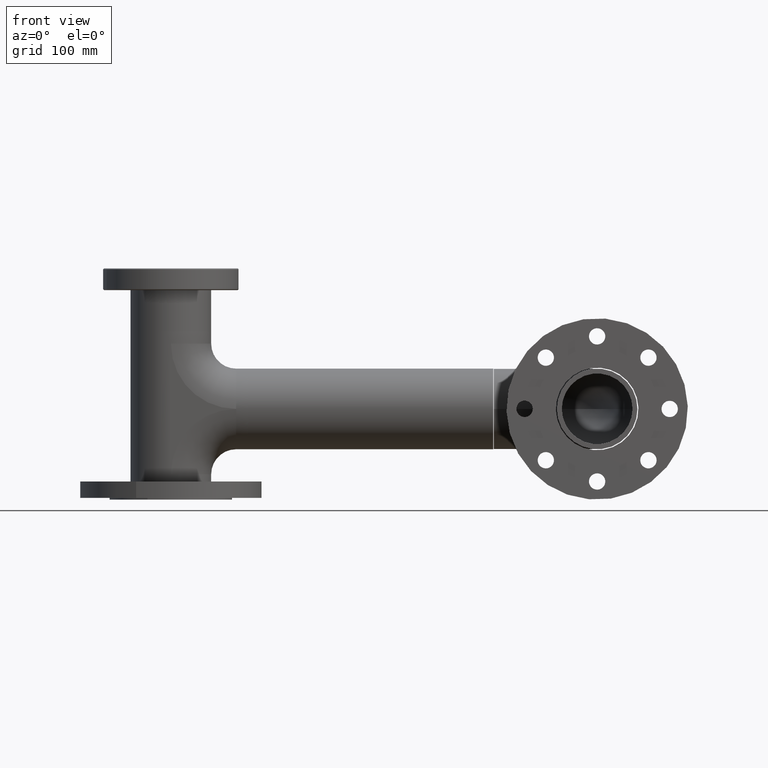
[diagram: clean part render]
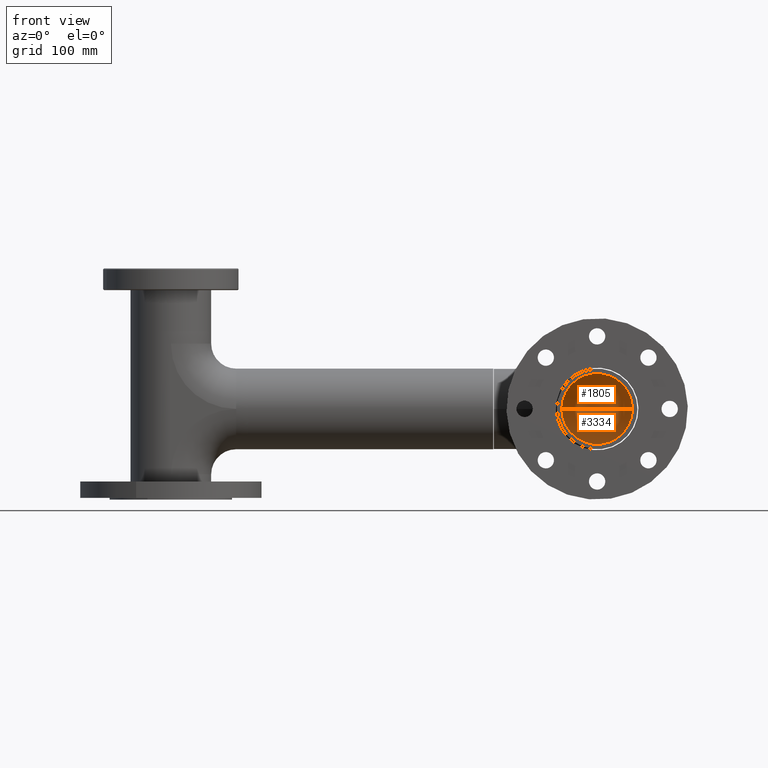
[diagram: same view with one multi-face feature highlighted, each face labeled with its STEP entity id]
A machine part, front view. The highlighted faces form ONE feature: a constant-radius fillet chain: 2 tangent blend faces with common blend radius 38.96 mm. The faces share edges in the B-rep.
Their STEP definitions:
[1] entity #1805 (Torus):
#20 = ORIENTED_EDGE ( 'NONE', *, *, #392, .T. ) ;
#48 = TOROIDAL_SURFACE ( 'NONE', #2749, 114.0000000000000000, 38.96000000000000796 ) ;
#85 = CIRCLE ( 'NONE', #2624, 38.96000000000000796 ) ;
#198 = CARTESIAN_POINT ( 'NONE',  ( 0.000000000000000000, 0.000000000000000000, 0.000000000000000000 ) ) ;
#221 = CIRCLE ( 'NONE', #3208, 38.96000000000000796 ) ;
#226 = EDGE_CURVE ( 'NONE', #1880, #3271, #85, .T. ) ;
#274 = AXIS2_PLACEMENT_3D ( 'NONE', #1383, #3254, #360 ) ;
#293 = VERTEX_POINT ( 'NONE', #2690 ) ;
#302 = AXIS2_PLACEMENT_3D ( 'NONE', #3232, #858, #1906 ) ;
#360 = DIRECTION ( 'NONE',  ( 1.000000000000000000, 0.000000000000000000, 0.000000000000000000 ) ) ;
#392 = EDGE_CURVE ( 'NONE', #1880, #293, #3287, .T. ) ;
#680 = DIRECTION ( 'NONE',  ( -3.169856808907806676E-15, -1.000000000000000000, -0.000000000000000000 ) ) ;
#716 = CARTESIAN_POINT ( 'NONE',  ( 0.000000000000000000, 75.03999999999999204, -4.771223929478089166E-15 ) ) ;
#858 = DIRECTION ( 'NONE',  ( 0.000000000000000000, 0.000000000000000000, 1.000000000000000000 ) ) ;
#955 = DIRECTION ( 'NONE',  ( -1.000000000000000000, -0.000000000000000000, -0.000000000000000000 ) ) ;
#1179 = DIRECTION ( 'NONE',  ( 0.000000000000000000, 0.000000000000000000, -1.000000000000000000 ) ) ;
#1248 = DIRECTION ( 'NONE',  ( 0.000000000000000000, 0.000000000000000000, 1.000000000000000000 ) ) ;
#1346 = CARTESIAN_POINT ( 'NONE',  ( -75.03999999999999204, 2.378660549404417942E-13, -4.771223929478089166E-15 ) ) ;
#1383 = CARTESIAN_POINT ( 'NONE',  ( 0.000000000000000000, 0.000000000000000000, -4.771223929478089166E-15 ) ) ;
#1393 = VERTEX_POINT ( 'NONE', #1346 ) ;
#1504 = CARTESIAN_POINT ( 'NONE',  ( -114.0000000000000000, 3.613636762154899974E-13, 0.000000000000000000 ) ) ;
#1514 = FACE_OUTER_BOUND ( 'NONE', #2767, .T. ) ;
#1774 = CARTESIAN_POINT ( 'NONE',  ( 0.000000000000000000, 152.9600000000000080, 0.000000000000000000 ) ) ;
#1805 = ADVANCED_FACE ( 'NONE', ( #1514 ), #48, .F. ) ;
#1880 = VERTEX_POINT ( 'NONE', #1774 ) ;
#1906 = DIRECTION ( 'NONE',  ( 1.000000000000000000, 0.000000000000000000, 0.000000000000000000 ) ) ;
#2182 = EDGE_CURVE ( 'NONE', #3271, #1393, #2260, .T. ) ;
#2232 = CARTESIAN_POINT ( 'NONE',  ( 0.000000000000000000, 114.0000000000000000, 0.000000000000000000 ) ) ;
#2260 = CIRCLE ( 'NONE', #274, 75.03999999999999204 ) ;
#2368 = ORIENTED_EDGE ( 'NONE', *, *, #226, .F. ) ;
#2624 = AXIS2_PLACEMENT_3D ( 'NONE', #2232, #955, #3345 ) ;
#2690 = CARTESIAN_POINT ( 'NONE',  ( -152.9600000000000080, 4.848612974905381501E-13, 0.000000000000000000 ) ) ;
#2749 = AXIS2_PLACEMENT_3D ( 'NONE', #198, #1248, #2874 ) ;
#2767 = EDGE_LOOP ( 'NONE', ( #2368, #20, #3000, #3365 ) ) ;
#2779 = EDGE_CURVE ( 'NONE', #293, #1393, #221, .T. ) ;
#2874 = DIRECTION ( 'NONE',  ( 1.000000000000000000, 0.000000000000000000, 0.000000000000000000 ) ) ;
#3000 = ORIENTED_EDGE ( 'NONE', *, *, #2779, .T. ) ;
#3208 = AXIS2_PLACEMENT_3D ( 'NONE', #1504, #680, #1179 ) ;
#3232 = CARTESIAN_POINT ( 'NONE',  ( 0.000000000000000000, 0.000000000000000000, 0.000000000000000000 ) ) ;
#3254 = DIRECTION ( 'NONE',  ( 0.000000000000000000, 0.000000000000000000, 1.000000000000000000 ) ) ;
#3271 = VERTEX_POINT ( 'NONE', #716 ) ;
#3287 = CIRCLE ( 'NONE', #302, 152.9600000000000080 ) ;
#3345 = DIRECTION ( 'NONE',  ( 0.000000000000000000, 0.000000000000000000, -1.000000000000000000 ) ) ;
#3365 = ORIENTED_EDGE ( 'NONE', *, *, #2182, .F. ) ;
[2] entity #3334 (Torus):
#26 = FACE_OUTER_BOUND ( 'NONE', #799, .T. ) ;
#39 = EDGE_CURVE ( 'NONE', #1393, #293, #2296, .T. ) ;
#274 = AXIS2_PLACEMENT_3D ( 'NONE', #1383, #3254, #360 ) ;
#293 = VERTEX_POINT ( 'NONE', #2690 ) ;
#302 = AXIS2_PLACEMENT_3D ( 'NONE', #3232, #858, #1906 ) ;
#360 = DIRECTION ( 'NONE',  ( 1.000000000000000000, 0.000000000000000000, 0.000000000000000000 ) ) ;
#392 = EDGE_CURVE ( 'NONE', #1880, #293, #3287, .T. ) ;
#491 = ORIENTED_EDGE ( 'NONE', *, *, #392, .F. ) ;
#716 = CARTESIAN_POINT ( 'NONE',  ( 0.000000000000000000, 75.03999999999999204, -4.771223929478089166E-15 ) ) ;
#799 = EDGE_LOOP ( 'NONE', ( #491, #1613, #2615, #2906 ) ) ;
#801 = AXIS2_PLACEMENT_3D ( 'NONE', #2406, #2713, #3260 ) ;
#858 = DIRECTION ( 'NONE',  ( 0.000000000000000000, 0.000000000000000000, 1.000000000000000000 ) ) ;
#939 = TOROIDAL_SURFACE ( 'NONE', #2872, 114.0000000000000000, 38.96000000000000796 ) ;
#1011 = EDGE_CURVE ( 'NONE', #3271, #1880, #3408, .T. ) ;
#1346 = CARTESIAN_POINT ( 'NONE',  ( -75.03999999999999204, 2.378660549404417942E-13, -4.771223929478089166E-15 ) ) ;
#1383 = CARTESIAN_POINT ( 'NONE',  ( 0.000000000000000000, 0.000000000000000000, -4.771223929478089166E-15 ) ) ;
#1393 = VERTEX_POINT ( 'NONE', #1346 ) ;
#1613 = ORIENTED_EDGE ( 'NONE', *, *, #1011, .F. ) ;
#1774 = CARTESIAN_POINT ( 'NONE',  ( 0.000000000000000000, 152.9600000000000080, 0.000000000000000000 ) ) ;
#1880 = VERTEX_POINT ( 'NONE', #1774 ) ;
#1906 = DIRECTION ( 'NONE',  ( 1.000000000000000000, 0.000000000000000000, 0.000000000000000000 ) ) ;
#2098 = CARTESIAN_POINT ( 'NONE',  ( 0.000000000000000000, 0.000000000000000000, 0.000000000000000000 ) ) ;
#2182 = EDGE_CURVE ( 'NONE', #3271, #1393, #2260, .T. ) ;
#2260 = CIRCLE ( 'NONE', #274, 75.03999999999999204 ) ;
#2296 = CIRCLE ( 'NONE', #801, 38.96000000000000796 ) ;
#2406 = CARTESIAN_POINT ( 'NONE',  ( -114.0000000000000000, 3.613636762154899974E-13, 0.000000000000000000 ) ) ;
#2615 = ORIENTED_EDGE ( 'NONE', *, *, #2182, .T. ) ;
#2683 = AXIS2_PLACEMENT_3D ( 'NONE', #2808, #2772, #3036 ) ;
#2690 = CARTESIAN_POINT ( 'NONE',  ( -152.9600000000000080, 4.848612974905381501E-13, 0.000000000000000000 ) ) ;
#2713 = DIRECTION ( 'NONE',  ( -3.169856808907806676E-15, -1.000000000000000000, -0.000000000000000000 ) ) ;
#2772 = DIRECTION ( 'NONE',  ( -1.000000000000000000, -0.000000000000000000, -0.000000000000000000 ) ) ;
#2808 = CARTESIAN_POINT ( 'NONE',  ( 0.000000000000000000, 114.0000000000000000, 0.000000000000000000 ) ) ;
#2872 = AXIS2_PLACEMENT_3D ( 'NONE', #2098, #2931, #3226 ) ;
#2906 = ORIENTED_EDGE ( 'NONE', *, *, #39, .T. ) ;
#2931 = DIRECTION ( 'NONE',  ( 0.000000000000000000, 0.000000000000000000, 1.000000000000000000 ) ) ;
#3036 = DIRECTION ( 'NONE',  ( 0.000000000000000000, 0.000000000000000000, -1.000000000000000000 ) ) ;
#3226 = DIRECTION ( 'NONE',  ( 1.000000000000000000, 0.000000000000000000, 0.000000000000000000 ) ) ;
#3232 = CARTESIAN_POINT ( 'NONE',  ( 0.000000000000000000, 0.000000000000000000, 0.000000000000000000 ) ) ;
#3254 = DIRECTION ( 'NONE',  ( 0.000000000000000000, 0.000000000000000000, 1.000000000000000000 ) ) ;
#3260 = DIRECTION ( 'NONE',  ( 0.000000000000000000, 0.000000000000000000, -1.000000000000000000 ) ) ;
#3271 = VERTEX_POINT ( 'NONE', #716 ) ;
#3287 = CIRCLE ( 'NONE', #302, 152.9600000000000080 ) ;
#3334 = ADVANCED_FACE ( 'NONE', ( #26 ), #939, .F. ) ;
#3408 = CIRCLE ( 'NONE', #2683, 38.96000000000000796 ) ;